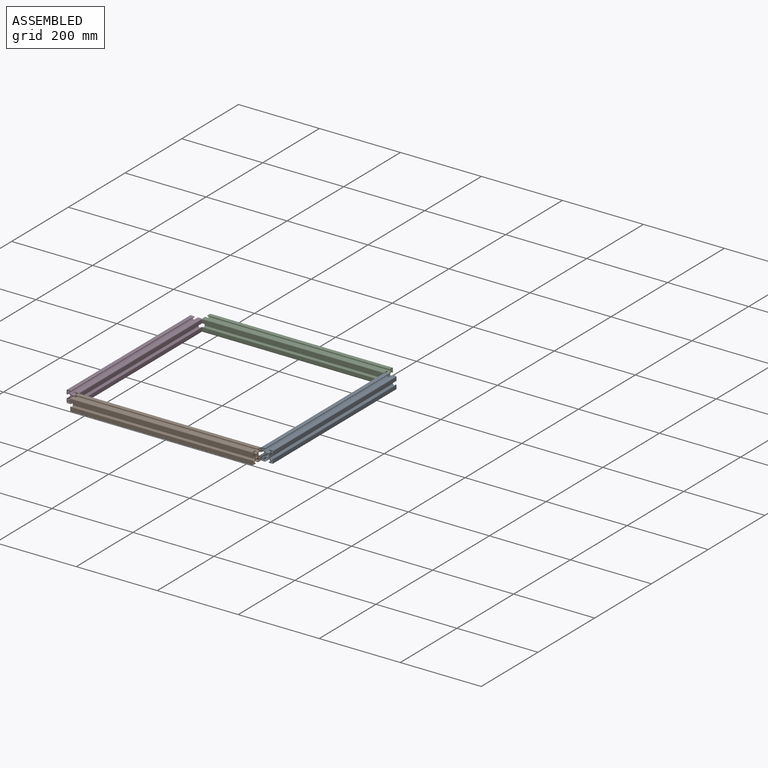
[diagram: assembled view]
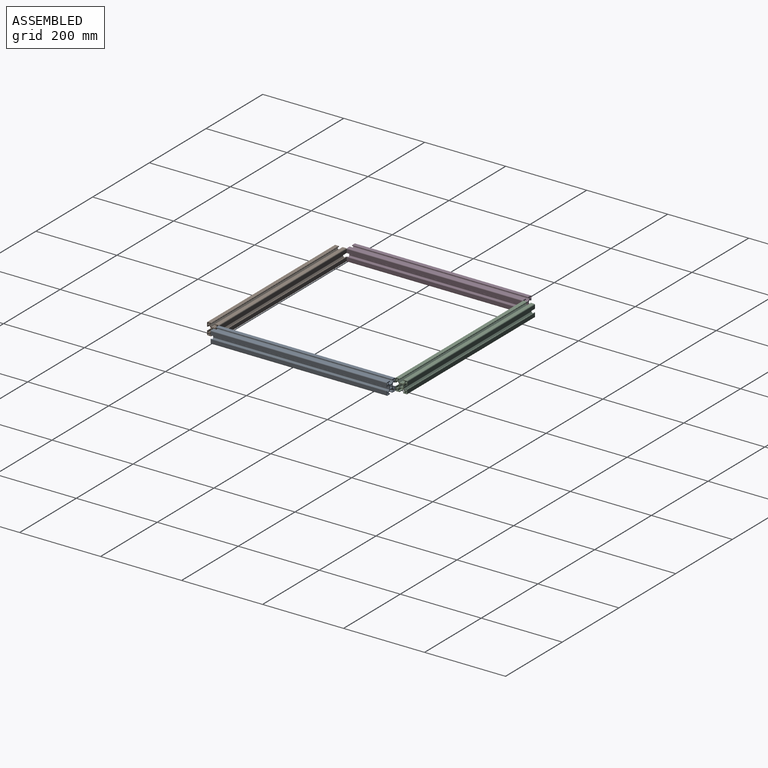
[diagram: assembled view, second angle]
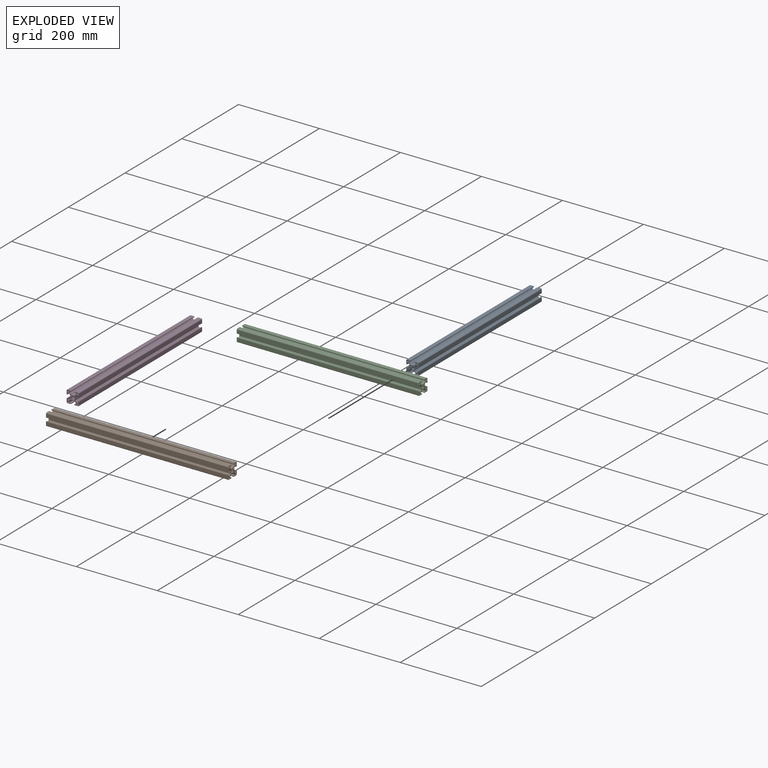
[diagram: exploded view]
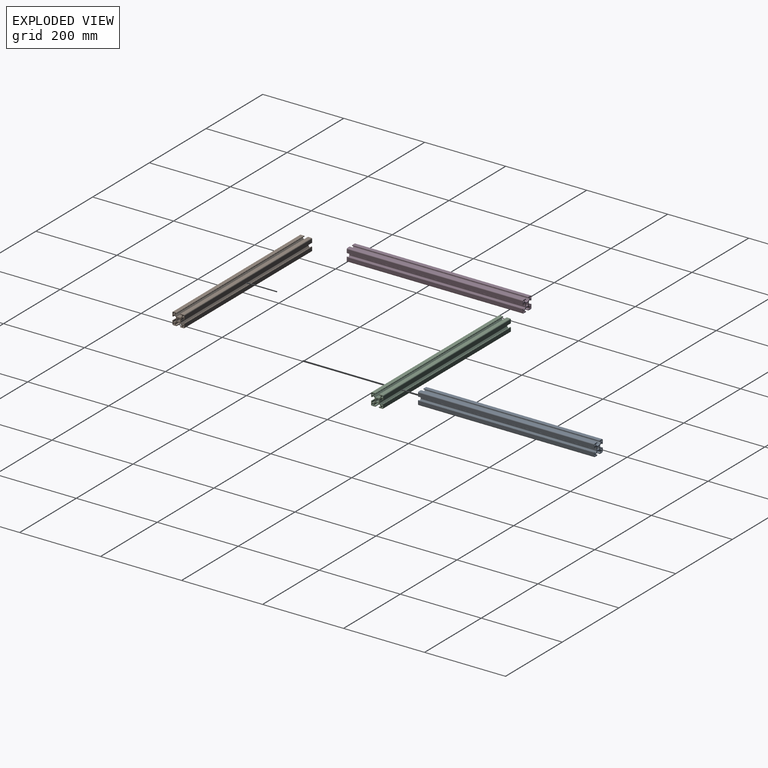
[diagram: exploded view, second angle]
ASSEMBLY  parts=4 mates=3
PART A: 186 faces, bbox 30x30x435 mm
  f0: plane 435x1.54mm, normal (0.63,0.78,0), area 858.1mm2, adj f1,f183,f184,f185
  f1: cylinder r=3.65mm len=435mm, axis (0,0,-1), area 1441.1mm2, adj f0,f2,f184,f185
  f2: plane 435x1.54mm, normal (-0.63,0.78,0), area 858.1mm2, adj f1,f3,f184,f185
  f3: cylinder r=5.5mm len=435mm, axis (0,0,-1), area 845.1mm2, adj f2,f4,f184,f185
  f4: plane 435x1.55mm, normal (0.79,-0.62,0), area 860.9mm2, adj f3,f5,f184,f185
  f5: cylinder r=3.65mm len=435mm, axis (0,0,-1), area 1441.1mm2, adj f4,f6,f184,f185
  f6: plane 435x1.55mm, normal (0.79,0.62,0), area 860.9mm2, adj f5,f7,f184,f185
  f7: cylinder r=5.5mm len=435mm, axis (0,0,-1), area 845.1mm2, adj f6,f8,f184,f185
  f8: plane 435x1.54mm, normal (-0.63,-0.78,0), area 858.1mm2, adj f7,f9,f184,f185
  f9: cylinder r=3.65mm len=435mm, axis (0,0,-1), area 1441.1mm2, adj f8,f10,f184,f185
  f10: plane 435x1.54mm, normal (0.63,-0.78,0), area 858.1mm2, adj f9,f11,f184,f185
  f11: cylinder r=5.5mm len=435mm, axis (0,0,-1), area 845.1mm2, adj f10,f12,f184,f185
  f12: plane 435x1.55mm, normal (-0.79,0.62,0), area 860.9mm2, adj f11,f13,f184,f185
  f13: cylinder r=3.65mm len=435mm, axis (0,0,-1), area 1441.1mm2, adj f12,f14,f184,f185
  f14: plane 435x1.55mm, normal (-0.79,-0.62,0), area 860.9mm2, adj f13,f183,f184,f185
  f15: plane 435x2.2mm, normal (-1,0,0), area 957mm2, adj f16,f178,f184,f185
  f16: cylinder r=1mm len=435mm, axis (0,0,-1), area 683.3mm2, adj f15,f17,f184,f185
  f17: plane 435x2.2mm, normal (0,1,0), area 957mm2, adj f16,f18,f184,f185
  f18: cylinder r=1mm len=435mm, axis (0,0,-1), area 683.3mm2, adj f17,f19,f184,f185
  f19: plane 435x2.2mm, normal (1,0,0), area 957mm2, adj f18,f20,f184,f185
  f20: cylinder r=1mm len=435mm, axis (0,0,-1), area 683.3mm2, adj f19,f21,f184,f185
  f21: plane 435x2.2mm, normal (0,-1,0), area 957mm2, adj f20,f178,f184,f185
  f22: plane 435x2.2mm, normal (-1,0,0), area 957mm2, adj f23,f179,f184,f185
  f23: cylinder r=1mm len=435mm, axis (0,0,-1), area 683.3mm2, adj f22,f24,f184,f185
  f24: plane 435x2.2mm, normal (0,1,0), area 957mm2, adj f23,f25,f184,f185
  f25: cylinder r=1mm len=435mm, axis (0,0,-1), area 683.3mm2, adj f24,f26,f184,f185
  f26: plane 435x2.2mm, normal (1,0,0), area 957mm2, adj f25,f27,f184,f185
  f27: cylinder r=1mm len=435mm, axis (0,0,-1), area 683.3mm2, adj f26,f28,f184,f185
  f28: plane 435x2.2mm, normal (0,-1,0), area 957mm2, adj f27,f179,f184,f185
  f29: plane 435x2.2mm, normal (1,0,0), area 957mm2, adj f30,f180,f184,f185
  f30: cylinder r=1mm len=435mm, axis (0,0,-1), area 683.3mm2, adj f29,f31,f184,f185
  f31: plane 435x2.2mm, normal (0,-1,0), area 957mm2, adj f30,f32,f184,f185
  f32: cylinder r=1mm len=435mm, axis (0,0,-1), area 683.3mm2, adj f31,f33,f184,f185
  f33: plane 435x2.2mm, normal (-1,0,0), area 957mm2, adj f32,f34,f184,f185
  f34: cylinder r=1mm len=435mm, axis (0,0,-1), area 683.3mm2, adj f33,f35,f184,f185
  f35: plane 435x2.2mm, normal (0,1,0), area 957mm2, adj f34,f180,f184,f185
  f36: plane 435x2.2mm, normal (1,0,0), area 957mm2, adj f37,f181,f184,f185
  f37: cylinder r=1mm len=435mm, axis (0,0,-1), area 683.3mm2, adj f36,f38,f184,f185
  f38: plane 435x2.2mm, normal (0,-1,0), area 957mm2, adj f37,f39,f184,f185
  f39: cylinder r=1mm len=435mm, axis (0,0,-1), area 683.3mm2, adj f38,f40,f184,f185
  f40: plane 435x2.2mm, normal (-1,0,0), area 957mm2, adj f39,f41,f184,f185
  f41: cylinder r=1mm len=435mm, axis (0,0,-1), area 683.3mm2, adj f40,f42,f184,f185
  f42: plane 435x2.2mm, normal (0,1,0), area 957mm2, adj f41,f181,f184,f185
  f43: cylinder r=2mm len=435mm, axis (0,0,-1), area 1366.6mm2, adj f44,f182,f184,f185
  f44: plane 435x8.3mm, normal (1,0,0), area 3610.5mm2, adj f43,f45,f184,f185
  f45: cylinder r=0.2mm len=435mm, axis (0,0,-1), area 136.7mm2, adj f44,f46,f184,f185
  f46: plane 435x0.3mm, normal (0,1,0), area 130.5mm2, adj f45,f47,f184,f185
  f47: plane 435x0.3mm, normal (1,0,0), area 130.5mm2, adj f46,f48,f184,f185
  f48: cylinder r=0.2mm len=435mm, axis (0,0,-1), area 136.7mm2, adj f47,f49,f184,f185
  f49: plane 435x1mm, normal (0,1,0), area 435mm2, adj f48,f50,f184,f185
  f50: cylinder r=0.5mm len=435mm, axis (0,0,-1), area 341.6mm2, adj f49,f51,f184,f185
  f51: plane 435x3.25mm, normal (-1,0,0), area 1413.8mm2, adj f50,f52,f184,f185
  f52: cylinder r=0.5mm len=435mm, axis (0,0,-1), area 341.6mm2, adj f51,f53,f184,f185
  f53: plane 435x2.04mm, normal (0,1,0), area 888.7mm2, adj f52,f54,f184,f185
  f54: cylinder r=0.5mm len=435mm, axis (0,0,-1), area 170.7mm2, adj f53,f55,f184,f185
  f55: plane 435x3.76mm, normal (0.71,0.71,0), area 2309.9mm2, adj f54,f56,f184,f185
  f56: cylinder r=0.5mm len=435mm, axis (0,0,-1), area 170.9mm2, adj f55,f57,f184,f185
  f57: plane 435x3.04mm, normal (1,0,0), area 1324.1mm2, adj f56,f58,f184,f185
  f58: cylinder r=0.2mm len=435mm, axis (0,0,-1), area 45.2mm2, adj f57,f59,f184,f185
  f59: plane 435x0.75mm, normal (0.87,0.5,0), area 378.2mm2, adj f58,f60,f184,f185
  f60: cylinder r=0.2mm len=435mm, axis (0,0,-1), area 90.5mm2, adj f59,f61,f184,f185
  f61: plane 435x0.75mm, normal (0.87,-0.5,0), area 378.2mm2, adj f60,f62,f184,f185
  f62: cylinder r=0.2mm len=435mm, axis (0,0,-1), area 45.2mm2, adj f61,f63,f184,f185
  f63: plane 435x3.04mm, normal (1,0,0), area 1324.1mm2, adj f62,f64,f184,f185
  f64: cylinder r=0.5mm len=435mm, axis (0,0,-1), area 170.9mm2, adj f63,f65,f184,f185
  f65: plane 435x3.76mm, normal (0.71,-0.71,0), area 2309.9mm2, adj f64,f66,f184,f185
  f66: cylinder r=0.5mm len=435mm, axis (0,0,-1), area 170.7mm2, adj f65,f67,f184,f185
  f67: plane 435x2.04mm, normal (0,-1,0), area 888.7mm2, adj f66,f68,f184,f185
  f68: cylinder r=0.5mm len=435mm, axis (0,0,-1), area 341.6mm2, adj f67,f69,f184,f185
  f69: plane 435x3.25mm, normal (-1,0,0), area 1413.8mm2, adj f68,f70,f184,f185
  f70: cylinder r=0.5mm len=435mm, axis (0,0,-1), area 341.6mm2, adj f69,f71,f184,f185
  f71: plane 435x1mm, normal (0,-1,0), area 435mm2, adj f70,f72,f184,f185
  f72: cylinder r=0.2mm len=435mm, axis (0,0,-1), area 136.7mm2, adj f71,f73,f184,f185
  f73: plane 435x0.3mm, normal (1,0,0), area 130.5mm2, adj f72,f74,f184,f185
  f74: plane 435x0.3mm, normal (0,-1,0), area 130.5mm2, adj f73,f75,f184,f185
  f75: cylinder r=0.2mm len=435mm, axis (0,0,-1), area 136.7mm2, adj f74,f76,f184,f185
  f76: plane 435x8.3mm, normal (1,0,0), area 3610.5mm2, adj f75,f77,f184,f185
  f77: cylinder r=2mm len=435mm, axis (0,0,-1), area 1366.6mm2, adj f76,f78,f184,f185
  f78: plane 435x8.3mm, normal (0,1,0), area 3610.5mm2, adj f77,f79,f184,f185
  f79: cylinder r=0.2mm len=435mm, axis (0,0,-1), area 136.7mm2, adj f78,f80,f184,f185
  f80: plane 435x0.3mm, normal (-1,0,0), area 130.5mm2, adj f79,f81,f184,f185
  f81: plane 435x0.3mm, normal (0,1,0), area 130.5mm2, adj f80,f82,f184,f185
  f82: cylinder r=0.2mm len=435mm, axis (0,0,-1), area 136.7mm2, adj f81,f83,f184,f185
  f83: plane 435x1mm, normal (-1,0,0), area 435mm2, adj f82,f84,f184,f185
  f84: cylinder r=0.5mm len=435mm, axis (0,0,-1), area 341.6mm2, adj f83,f85,f184,f185
  f85: plane 435x3.25mm, normal (0,-1,0), area 1413.8mm2, adj f84,f86,f184,f185
  f86: cylinder r=0.5mm len=435mm, axis (0,0,-1), area 341.6mm2, adj f85,f87,f184,f185
  f87: plane 435x2.04mm, normal (-1,0,0), area 888.7mm2, adj f86,f88,f184,f185
  f88: cylinder r=0.5mm len=435mm, axis (0,0,-1), area 170.7mm2, adj f87,f89,f184,f185
  f89: plane 435x3.76mm, normal (-0.71,0.71,0), area 2309.9mm2, adj f88,f90,f184,f185
  f90: cylinder r=0.5mm len=435mm, axis (0,0,-1), area 170.9mm2, adj f89,f91,f184,f185
  f91: plane 435x3.04mm, normal (0,1,0), area 1324.1mm2, adj f90,f92,f184,f185
  f92: cylinder r=0.2mm len=435mm, axis (0,0,-1), area 45.2mm2, adj f91,f93,f184,f185
  f93: plane 435x0.75mm, normal (-0.5,0.87,0), area 378.2mm2, adj f92,f94,f184,f185
  f94: cylinder r=0.2mm len=435mm, axis (0,0,-1), area 90.5mm2, adj f93,f95,f184,f185
  f95: plane 435x0.75mm, normal (0.5,0.87,0), area 378.2mm2, adj f94,f96,f184,f185
  f96: cylinder r=0.2mm len=435mm, axis (0,0,-1), area 45.2mm2, adj f95,f97,f184,f185
  f97: plane 435x3.04mm, normal (0,1,0), area 1324.1mm2, adj f96,f98,f184,f185
  f98: cylinder r=0.5mm len=435mm, axis (0,0,-1), area 170.9mm2, adj f97,f99,f184,f185
  f99: plane 435x3.76mm, normal (0.71,0.71,0), area 2309.9mm2, adj f98,f100,f184,f185
  f100: cylinder r=0.5mm len=435mm, axis (0,0,-1), area 170.7mm2, adj f99,f101,f184,f185
  f101: plane 435x2.04mm, normal (1,0,0), area 888.7mm2, adj f100,f102,f184,f185
  f102: cylinder r=0.5mm len=435mm, axis (0,0,-1), area 341.6mm2, adj f101,f103,f184,f185
  f103: plane 435x3.25mm, normal (0,-1,0), area 1413.8mm2, adj f102,f104,f184,f185
  f104: cylinder r=0.5mm len=435mm, axis (0,0,-1), area 341.6mm2, adj f103,f105,f184,f185
  f105: plane 435x1mm, normal (1,0,0), area 435mm2, adj f104,f106,f184,f185
  f106: cylinder r=0.2mm len=435mm, axis (0,0,-1), area 136.7mm2, adj f105,f107,f184,f185
  f107: plane 435x0.3mm, normal (0,1,0), area 130.5mm2, adj f106,f108,f184,f185
  f108: plane 435x0.3mm, normal (1,0,0), area 130.5mm2, adj f107,f109,f184,f185
  f109: cylinder r=0.2mm len=435mm, axis (0,0,-1), area 136.7mm2, adj f108,f110,f184,f185
  f110: plane 435x8.3mm, normal (0,1,0), area 3610.5mm2, adj f109,f111,f184,f185
  f111: cylinder r=2mm len=435mm, axis (0,0,-1), area 1366.6mm2, adj f110,f112,f184,f185
  f112: plane 435x8.3mm, normal (-1,0,0), area 3610.5mm2, adj f111,f113,f184,f185
  f113: cylinder r=0.2mm len=435mm, axis (0,0,-1), area 136.7mm2, adj f112,f114,f184,f185
  f114: plane 435x0.3mm, normal (0,-1,0), area 130.5mm2, adj f113,f115,f184,f185
  f115: plane 435x0.3mm, normal (-1,0,0), area 130.5mm2, adj f114,f116,f184,f185
  f116: cylinder r=0.2mm len=435mm, axis (0,0,-1), area 136.7mm2, adj f115,f117,f184,f185
  f117: plane 435x1mm, normal (0,-1,0), area 435mm2, adj f116,f118,f184,f185
  f118: cylinder r=0.5mm len=435mm, axis (0,0,-1), area 341.6mm2, adj f117,f119,f184,f185
  f119: plane 435x3.25mm, normal (1,0,0), area 1413.8mm2, adj f118,f120,f184,f185
  f120: cylinder r=0.5mm len=435mm, axis (0,0,-1), area 341.6mm2, adj f119,f121,f184,f185
  f121: plane 435x2.04mm, normal (0,-1,0), area 888.7mm2, adj f120,f122,f184,f185
  f122: cylinder r=0.5mm len=435mm, axis (0,0,-1), area 170.7mm2, adj f121,f123,f184,f185
  f123: plane 435x3.76mm, normal (-0.71,-0.71,0), area 2309.9mm2, adj f122,f124,f184,f185
  f124: cylinder r=0.5mm len=435mm, axis (0,0,-1), area 170.9mm2, adj f123,f125,f184,f185
  f125: plane 435x3.04mm, normal (-1,0,0), area 1324.1mm2, adj f124,f126,f184,f185
  f126: cylinder r=0.2mm len=435mm, axis (0,0,-1), area 45.2mm2, adj f125,f127,f184,f185
  f127: plane 435x0.75mm, normal (-0.87,-0.5,0), area 378.2mm2, adj f126,f128,f184,f185
  f128: cylinder r=0.2mm len=435mm, axis (0,0,-1), area 90.5mm2, adj f127,f129,f184,f185
  f129: plane 435x0.75mm, normal (-0.87,0.5,0), area 378.2mm2, adj f128,f130,f184,f185
  f130: cylinder r=0.2mm len=435mm, axis (0,0,-1), area 45.2mm2, adj f129,f131,f184,f185
  f131: plane 435x3.04mm, normal (-1,0,0), area 1324.1mm2, adj f130,f132,f184,f185
  f132: cylinder r=0.5mm len=435mm, axis (0,0,-1), area 170.9mm2, adj f131,f133,f184,f185
  f133: plane 435x3.76mm, normal (-0.71,0.71,0), area 2309.9mm2, adj f132,f134,f184,f185
  f134: cylinder r=0.5mm len=435mm, axis (0,0,-1), area 170.7mm2, adj f133,f135,f184,f185
  f135: plane 435x2.04mm, normal (0,1,0), area 888.7mm2, adj f134,f136,f184,f185
  f136: cylinder r=0.5mm len=435mm, axis (0,0,-1), area 341.6mm2, adj f135,f137,f184,f185
  f137: plane 435x3.25mm, normal (1,0,0), area 1413.8mm2, adj f136,f138,f184,f185
  f138: cylinder r=0.5mm len=435mm, axis (0,0,-1), area 341.6mm2, adj f137,f139,f184,f185
  f139: plane 435x1mm, normal (0,1,0), area 435mm2, adj f138,f140,f184,f185
  f140: cylinder r=0.2mm len=435mm, axis (0,0,-1), area 136.7mm2, adj f139,f141,f184,f185
  f141: plane 435x0.3mm, normal (-1,0,0), area 130.5mm2, adj f140,f142,f184,f185
  f142: plane 435x0.3mm, normal (0,1,0), area 130.5mm2, adj f141,f143,f184,f185
  f143: cylinder r=0.2mm len=435mm, axis (0,0,-1), area 136.7mm2, adj f142,f144,f184,f185
  f144: plane 435x8.3mm, normal (-1,0,0), area 3610.5mm2, adj f143,f145,f184,f185
  f145: cylinder r=2mm len=435mm, axis (0,0,-1), area 1366.6mm2, adj f144,f146,f184,f185
  f146: plane 435x8.3mm, normal (0,-1,0), area 3610.5mm2, adj f145,f147,f184,f185
  f147: cylinder r=0.2mm len=435mm, axis (0,0,-1), area 136.7mm2, adj f146,f148,f184,f185
  f148: plane 435x0.3mm, normal (1,0,0), area 130.5mm2, adj f147,f149,f184,f185
  f149: plane 435x0.3mm, normal (0,-1,0), area 130.5mm2, adj f148,f150,f184,f185
  f150: cylinder r=0.2mm len=435mm, axis (0,0,-1), area 136.7mm2, adj f149,f151,f184,f185
  f151: plane 435x1mm, normal (1,0,0), area 435mm2, adj f150,f152,f184,f185
  f152: cylinder r=0.5mm len=435mm, axis (0,0,-1), area 341.6mm2, adj f151,f153,f184,f185
  f153: plane 435x3.25mm, normal (0,1,0), area 1413.8mm2, adj f152,f154,f184,f185
  f154: cylinder r=0.5mm len=435mm, axis (0,0,-1), area 341.6mm2, adj f153,f155,f184,f185
  f155: plane 435x2.04mm, normal (1,0,0), area 888.7mm2, adj f154,f156,f184,f185
  f156: cylinder r=0.5mm len=435mm, axis (0,0,-1), area 170.7mm2, adj f155,f157,f184,f185
  f157: plane 435x3.76mm, normal (0.71,-0.71,0), area 2309.9mm2, adj f156,f158,f184,f185
  f158: cylinder r=0.5mm len=435mm, axis (0,0,-1), area 170.9mm2, adj f157,f159,f184,f185
  f159: plane 435x3.04mm, normal (0,-1,0), area 1324.1mm2, adj f158,f160,f184,f185
  f160: cylinder r=0.2mm len=435mm, axis (0,0,-1), area 45.2mm2, adj f159,f161,f184,f185
  f161: plane 435x0.75mm, normal (0.5,-0.87,0), area 378.2mm2, adj f160,f162,f184,f185
  f162: cylinder r=0.2mm len=435mm, axis (0,0,-1), area 90.5mm2, adj f161,f163,f184,f185
  f163: plane 435x0.75mm, normal (-0.5,-0.87,0), area 378.2mm2, adj f162,f164,f184,f185
  f164: cylinder r=0.2mm len=435mm, axis (0,0,-1), area 45.2mm2, adj f163,f165,f184,f185
  f165: plane 435x3.04mm, normal (0,-1,0), area 1324.1mm2, adj f164,f166,f184,f185
  f166: cylinder r=0.5mm len=435mm, axis (0,0,-1), area 170.9mm2, adj f165,f167,f184,f185
  f167: plane 435x3.76mm, normal (-0.71,-0.71,0), area 2309.9mm2, adj f166,f168,f184,f185
  f168: cylinder r=0.5mm len=435mm, axis (0,0,-1), area 170.7mm2, adj f167,f169,f184,f185
  f169: plane 435x2.04mm, normal (-1,0,0), area 888.7mm2, adj f168,f170,f184,f185
  f170: cylinder r=0.5mm len=435mm, axis (0,0,-1), area 341.6mm2, adj f169,f171,f184,f185
  f171: plane 435x3.25mm, normal (0,1,0), area 1413.8mm2, adj f170,f172,f184,f185
  f172: cylinder r=0.5mm len=435mm, axis (0,0,-1), area 341.6mm2, adj f171,f173,f184,f185
  f173: plane 435x1mm, normal (-1,0,0), area 435mm2, adj f172,f174,f184,f185
  f174: cylinder r=0.2mm len=435mm, axis (0,0,-1), area 136.7mm2, adj f173,f175,f184,f185
  f175: plane 435x0.3mm, normal (0,-1,0), area 130.5mm2, adj f174,f176,f184,f185
  f176: plane 435x0.3mm, normal (-1,0,0), area 130.5mm2, adj f175,f177,f184,f185
  f177: cylinder r=0.2mm len=435mm, axis (0,0,-1), area 136.7mm2, adj f176,f182,f184,f185
  f178: cylinder r=1mm len=435mm, axis (0,0,-1), area 683.3mm2, adj f15,f21,f184,f185
  f179: cylinder r=1mm len=435mm, axis (0,0,-1), area 683.3mm2, adj f22,f28,f184,f185
  f180: cylinder r=1mm len=435mm, axis (0,0,-1), area 683.3mm2, adj f29,f35,f184,f185
  f181: cylinder r=1mm len=435mm, axis (0,0,-1), area 683.3mm2, adj f36,f42,f184,f185
  f182: plane 435x8.3mm, normal (0,-1,0), area 3610.5mm2, adj f43,f177,f184,f185
  f183: cylinder r=5.5mm len=435mm, axis (0,0,-1), area 845.1mm2, adj f0,f14,f184,f185
  f184: plane 30x30mm, normal (0,0,1), area 313.9mm2, adj f0,f1,f2,f3,f4,f5,f6,f7
  f185: plane 30x30mm, normal (0,0,-1), area 313.9mm2, adj f0,f1,f2,f3,f4,f5,f6,f7
PART B: 186 faces, bbox 30x30x450 mm
  f0: plane 450x1.54mm, normal (0.63,0.78,0), area 887.6mm2, adj f1,f183,f184,f185
  f1: cylinder r=3.65mm len=450mm, axis (0,0,-1), area 1490.8mm2, adj f0,f2,f184,f185
  f2: plane 450x1.54mm, normal (-0.63,0.78,0), area 887.6mm2, adj f1,f3,f184,f185
  f3: cylinder r=5.5mm len=450mm, axis (0,0,-1), area 874.2mm2, adj f2,f4,f184,f185
  f4: plane 450x1.55mm, normal (0.79,-0.62,0), area 890.6mm2, adj f3,f5,f184,f185
  f5: cylinder r=3.65mm len=450mm, axis (0,0,-1), area 1490.8mm2, adj f4,f6,f184,f185
  f6: plane 450x1.55mm, normal (0.79,0.62,0), area 890.6mm2, adj f5,f7,f184,f185
  f7: cylinder r=5.5mm len=450mm, axis (0,0,-1), area 874.2mm2, adj f6,f8,f184,f185
  f8: plane 450x1.54mm, normal (-0.63,-0.78,0), area 887.6mm2, adj f7,f9,f184,f185
  f9: cylinder r=3.65mm len=450mm, axis (0,0,-1), area 1490.8mm2, adj f8,f10,f184,f185
  f10: plane 450x1.54mm, normal (0.63,-0.78,0), area 887.6mm2, adj f9,f11,f184,f185
  f11: cylinder r=5.5mm len=450mm, axis (0,0,-1), area 874.2mm2, adj f10,f12,f184,f185
  f12: plane 450x1.55mm, normal (-0.79,0.62,0), area 890.6mm2, adj f11,f13,f184,f185
  f13: cylinder r=3.65mm len=450mm, axis (0,0,-1), area 1490.8mm2, adj f12,f14,f184,f185
  f14: plane 450x1.55mm, normal (-0.79,-0.62,0), area 890.6mm2, adj f13,f183,f184,f185
  f15: plane 450x2.2mm, normal (-1,0,0), area 990mm2, adj f16,f178,f184,f185
  f16: cylinder r=1mm len=450mm, axis (0,0,-1), area 706.9mm2, adj f15,f17,f184,f185
  f17: plane 450x2.2mm, normal (0,1,0), area 990mm2, adj f16,f18,f184,f185
  f18: cylinder r=1mm len=450mm, axis (0,0,-1), area 706.9mm2, adj f17,f19,f184,f185
  f19: plane 450x2.2mm, normal (1,0,0), area 990mm2, adj f18,f20,f184,f185
  f20: cylinder r=1mm len=450mm, axis (0,0,-1), area 706.9mm2, adj f19,f21,f184,f185
  f21: plane 450x2.2mm, normal (0,-1,0), area 990mm2, adj f20,f178,f184,f185
  f22: plane 450x2.2mm, normal (-1,0,0), area 990mm2, adj f23,f179,f184,f185
  f23: cylinder r=1mm len=450mm, axis (0,0,-1), area 706.9mm2, adj f22,f24,f184,f185
  f24: plane 450x2.2mm, normal (0,1,0), area 990mm2, adj f23,f25,f184,f185
  f25: cylinder r=1mm len=450mm, axis (0,0,-1), area 706.9mm2, adj f24,f26,f184,f185
  f26: plane 450x2.2mm, normal (1,0,0), area 990mm2, adj f25,f27,f184,f185
  f27: cylinder r=1mm len=450mm, axis (0,0,-1), area 706.9mm2, adj f26,f28,f184,f185
  f28: plane 450x2.2mm, normal (0,-1,0), area 990mm2, adj f27,f179,f184,f185
  f29: plane 450x2.2mm, normal (1,0,0), area 990mm2, adj f30,f180,f184,f185
  f30: cylinder r=1mm len=450mm, axis (0,0,-1), area 706.9mm2, adj f29,f31,f184,f185
  f31: plane 450x2.2mm, normal (0,-1,0), area 990mm2, adj f30,f32,f184,f185
  f32: cylinder r=1mm len=450mm, axis (0,0,-1), area 706.9mm2, adj f31,f33,f184,f185
  f33: plane 450x2.2mm, normal (-1,0,0), area 990mm2, adj f32,f34,f184,f185
  f34: cylinder r=1mm len=450mm, axis (0,0,-1), area 706.9mm2, adj f33,f35,f184,f185
  f35: plane 450x2.2mm, normal (0,1,0), area 990mm2, adj f34,f180,f184,f185
  f36: plane 450x2.2mm, normal (1,0,0), area 990mm2, adj f37,f181,f184,f185
  f37: cylinder r=1mm len=450mm, axis (0,0,-1), area 706.9mm2, adj f36,f38,f184,f185
  f38: plane 450x2.2mm, normal (0,-1,0), area 990mm2, adj f37,f39,f184,f185
  f39: cylinder r=1mm len=450mm, axis (0,0,-1), area 706.9mm2, adj f38,f40,f184,f185
  f40: plane 450x2.2mm, normal (-1,0,0), area 990mm2, adj f39,f41,f184,f185
  f41: cylinder r=1mm len=450mm, axis (0,0,-1), area 706.9mm2, adj f40,f42,f184,f185
  f42: plane 450x2.2mm, normal (0,1,0), area 990mm2, adj f41,f181,f184,f185
  f43: cylinder r=2mm len=450mm, axis (0,0,-1), area 1413.7mm2, adj f44,f182,f184,f185
  f44: plane 450x8.3mm, normal (1,0,0), area 3735mm2, adj f43,f45,f184,f185
  f45: cylinder r=0.2mm len=450mm, axis (0,0,-1), area 141.4mm2, adj f44,f46,f184,f185
  f46: plane 450x0.3mm, normal (0,1,0), area 135mm2, adj f45,f47,f184,f185
  f47: plane 450x0.3mm, normal (1,0,0), area 135mm2, adj f46,f48,f184,f185
  f48: cylinder r=0.2mm len=450mm, axis (0,0,-1), area 141.4mm2, adj f47,f49,f184,f185
  f49: plane 450x1mm, normal (0,1,0), area 450mm2, adj f48,f50,f184,f185
  f50: cylinder r=0.5mm len=450mm, axis (0,0,-1), area 353.4mm2, adj f49,f51,f184,f185
  f51: plane 450x3.25mm, normal (-1,0,0), area 1462.5mm2, adj f50,f52,f184,f185
  f52: cylinder r=0.5mm len=450mm, axis (0,0,-1), area 353.4mm2, adj f51,f53,f184,f185
  f53: plane 450x2.04mm, normal (0,1,0), area 919.4mm2, adj f52,f54,f184,f185
  f54: cylinder r=0.5mm len=450mm, axis (0,0,-1), area 176.6mm2, adj f53,f55,f184,f185
  f55: plane 450x3.76mm, normal (0.71,0.71,0), area 2389.6mm2, adj f54,f56,f184,f185
  f56: cylinder r=0.5mm len=450mm, axis (0,0,-1), area 176.8mm2, adj f55,f57,f184,f185
  f57: plane 450x3.04mm, normal (1,0,0), area 1369.8mm2, adj f56,f58,f184,f185
  f58: cylinder r=0.2mm len=450mm, axis (0,0,-1), area 46.8mm2, adj f57,f59,f184,f185
  f59: plane 450x0.75mm, normal (0.87,0.5,0), area 391.2mm2, adj f58,f60,f184,f185
  f60: cylinder r=0.2mm len=450mm, axis (0,0,-1), area 93.6mm2, adj f59,f61,f184,f185
  f61: plane 450x0.75mm, normal (0.87,-0.5,0), area 391.2mm2, adj f60,f62,f184,f185
  f62: cylinder r=0.2mm len=450mm, axis (0,0,-1), area 46.8mm2, adj f61,f63,f184,f185
  f63: plane 450x3.04mm, normal (1,0,0), area 1369.8mm2, adj f62,f64,f184,f185
  f64: cylinder r=0.5mm len=450mm, axis (0,0,-1), area 176.8mm2, adj f63,f65,f184,f185
  f65: plane 450x3.76mm, normal (0.71,-0.71,0), area 2389.6mm2, adj f64,f66,f184,f185
  f66: cylinder r=0.5mm len=450mm, axis (0,0,-1), area 176.6mm2, adj f65,f67,f184,f185
  f67: plane 450x2.04mm, normal (0,-1,0), area 919.4mm2, adj f66,f68,f184,f185
  f68: cylinder r=0.5mm len=450mm, axis (0,0,-1), area 353.4mm2, adj f67,f69,f184,f185
  f69: plane 450x3.25mm, normal (-1,0,0), area 1462.5mm2, adj f68,f70,f184,f185
  f70: cylinder r=0.5mm len=450mm, axis (0,0,-1), area 353.4mm2, adj f69,f71,f184,f185
  f71: plane 450x1mm, normal (0,-1,0), area 450mm2, adj f70,f72,f184,f185
  f72: cylinder r=0.2mm len=450mm, axis (0,0,-1), area 141.4mm2, adj f71,f73,f184,f185
  f73: plane 450x0.3mm, normal (1,0,0), area 135mm2, adj f72,f74,f184,f185
  f74: plane 450x0.3mm, normal (0,-1,0), area 135mm2, adj f73,f75,f184,f185
  f75: cylinder r=0.2mm len=450mm, axis (0,0,-1), area 141.4mm2, adj f74,f76,f184,f185
  f76: plane 450x8.3mm, normal (1,0,0), area 3735mm2, adj f75,f77,f184,f185
  f77: cylinder r=2mm len=450mm, axis (0,0,-1), area 1413.7mm2, adj f76,f78,f184,f185
  f78: plane 450x8.3mm, normal (0,1,0), area 3735mm2, adj f77,f79,f184,f185
  f79: cylinder r=0.2mm len=450mm, axis (0,0,-1), area 141.4mm2, adj f78,f80,f184,f185
  f80: plane 450x0.3mm, normal (-1,0,0), area 135mm2, adj f79,f81,f184,f185
  f81: plane 450x0.3mm, normal (0,1,0), area 135mm2, adj f80,f82,f184,f185
  f82: cylinder r=0.2mm len=450mm, axis (0,0,-1), area 141.4mm2, adj f81,f83,f184,f185
  f83: plane 450x1mm, normal (-1,0,0), area 450mm2, adj f82,f84,f184,f185
  f84: cylinder r=0.5mm len=450mm, axis (0,0,-1), area 353.4mm2, adj f83,f85,f184,f185
  f85: plane 450x3.25mm, normal (0,-1,0), area 1462.5mm2, adj f84,f86,f184,f185
  f86: cylinder r=0.5mm len=450mm, axis (0,0,-1), area 353.4mm2, adj f85,f87,f184,f185
  f87: plane 450x2.04mm, normal (-1,0,0), area 919.4mm2, adj f86,f88,f184,f185
  f88: cylinder r=0.5mm len=450mm, axis (0,0,-1), area 176.6mm2, adj f87,f89,f184,f185
  f89: plane 450x3.76mm, normal (-0.71,0.71,0), area 2389.6mm2, adj f88,f90,f184,f185
  f90: cylinder r=0.5mm len=450mm, axis (0,0,-1), area 176.8mm2, adj f89,f91,f184,f185
  f91: plane 450x3.04mm, normal (0,1,0), area 1369.8mm2, adj f90,f92,f184,f185
  f92: cylinder r=0.2mm len=450mm, axis (0,0,-1), area 46.8mm2, adj f91,f93,f184,f185
  f93: plane 450x0.75mm, normal (-0.5,0.87,0), area 391.2mm2, adj f92,f94,f184,f185
  f94: cylinder r=0.2mm len=450mm, axis (0,0,-1), area 93.6mm2, adj f93,f95,f184,f185
  f95: plane 450x0.75mm, normal (0.5,0.87,0), area 391.2mm2, adj f94,f96,f184,f185
  f96: cylinder r=0.2mm len=450mm, axis (0,0,-1), area 46.8mm2, adj f95,f97,f184,f185
  f97: plane 450x3.04mm, normal (0,1,0), area 1369.8mm2, adj f96,f98,f184,f185
  f98: cylinder r=0.5mm len=450mm, axis (0,0,-1), area 176.8mm2, adj f97,f99,f184,f185
  f99: plane 450x3.76mm, normal (0.71,0.71,0), area 2389.6mm2, adj f98,f100,f184,f185
  f100: cylinder r=0.5mm len=450mm, axis (0,0,-1), area 176.6mm2, adj f99,f101,f184,f185
  f101: plane 450x2.04mm, normal (1,0,0), area 919.4mm2, adj f100,f102,f184,f185
  f102: cylinder r=0.5mm len=450mm, axis (0,0,-1), area 353.4mm2, adj f101,f103,f184,f185
  f103: plane 450x3.25mm, normal (0,-1,0), area 1462.5mm2, adj f102,f104,f184,f185
  f104: cylinder r=0.5mm len=450mm, axis (0,0,-1), area 353.4mm2, adj f103,f105,f184,f185
  f105: plane 450x1mm, normal (1,0,0), area 450mm2, adj f104,f106,f184,f185
  f106: cylinder r=0.2mm len=450mm, axis (0,0,-1), area 141.4mm2, adj f105,f107,f184,f185
  f107: plane 450x0.3mm, normal (0,1,0), area 135mm2, adj f106,f108,f184,f185
  f108: plane 450x0.3mm, normal (1,0,0), area 135mm2, adj f107,f109,f184,f185
  f109: cylinder r=0.2mm len=450mm, axis (0,0,-1), area 141.4mm2, adj f108,f110,f184,f185
  f110: plane 450x8.3mm, normal (0,1,0), area 3735mm2, adj f109,f111,f184,f185
  f111: cylinder r=2mm len=450mm, axis (0,0,-1), area 1413.7mm2, adj f110,f112,f184,f185
  f112: plane 450x8.3mm, normal (-1,0,0), area 3735mm2, adj f111,f113,f184,f185
  f113: cylinder r=0.2mm len=450mm, axis (0,0,-1), area 141.4mm2, adj f112,f114,f184,f185
  f114: plane 450x0.3mm, normal (0,-1,0), area 135mm2, adj f113,f115,f184,f185
  f115: plane 450x0.3mm, normal (-1,0,0), area 135mm2, adj f114,f116,f184,f185
  f116: cylinder r=0.2mm len=450mm, axis (0,0,-1), area 141.4mm2, adj f115,f117,f184,f185
  f117: plane 450x1mm, normal (0,-1,0), area 450mm2, adj f116,f118,f184,f185
  f118: cylinder r=0.5mm len=450mm, axis (0,0,-1), area 353.4mm2, adj f117,f119,f184,f185
  f119: plane 450x3.25mm, normal (1,0,0), area 1462.5mm2, adj f118,f120,f184,f185
  f120: cylinder r=0.5mm len=450mm, axis (0,0,-1), area 353.4mm2, adj f119,f121,f184,f185
  f121: plane 450x2.04mm, normal (0,-1,0), area 919.4mm2, adj f120,f122,f184,f185
  f122: cylinder r=0.5mm len=450mm, axis (0,0,-1), area 176.6mm2, adj f121,f123,f184,f185
  f123: plane 450x3.76mm, normal (-0.71,-0.71,0), area 2389.6mm2, adj f122,f124,f184,f185
  f124: cylinder r=0.5mm len=450mm, axis (0,0,-1), area 176.8mm2, adj f123,f125,f184,f185
  f125: plane 450x3.04mm, normal (-1,0,0), area 1369.8mm2, adj f124,f126,f184,f185
  f126: cylinder r=0.2mm len=450mm, axis (0,0,-1), area 46.8mm2, adj f125,f127,f184,f185
  f127: plane 450x0.75mm, normal (-0.87,-0.5,0), area 391.2mm2, adj f126,f128,f184,f185
  f128: cylinder r=0.2mm len=450mm, axis (0,0,-1), area 93.6mm2, adj f127,f129,f184,f185
  f129: plane 450x0.75mm, normal (-0.87,0.5,0), area 391.2mm2, adj f128,f130,f184,f185
  f130: cylinder r=0.2mm len=450mm, axis (0,0,-1), area 46.8mm2, adj f129,f131,f184,f185
  f131: plane 450x3.04mm, normal (-1,0,0), area 1369.8mm2, adj f130,f132,f184,f185
  f132: cylinder r=0.5mm len=450mm, axis (0,0,-1), area 176.8mm2, adj f131,f133,f184,f185
  f133: plane 450x3.76mm, normal (-0.71,0.71,0), area 2389.6mm2, adj f132,f134,f184,f185
  f134: cylinder r=0.5mm len=450mm, axis (0,0,-1), area 176.6mm2, adj f133,f135,f184,f185
  f135: plane 450x2.04mm, normal (0,1,0), area 919.4mm2, adj f134,f136,f184,f185
  f136: cylinder r=0.5mm len=450mm, axis (0,0,-1), area 353.4mm2, adj f135,f137,f184,f185
  f137: plane 450x3.25mm, normal (1,0,0), area 1462.5mm2, adj f136,f138,f184,f185
  f138: cylinder r=0.5mm len=450mm, axis (0,0,-1), area 353.4mm2, adj f137,f139,f184,f185
  f139: plane 450x1mm, normal (0,1,0), area 450mm2, adj f138,f140,f184,f185
  f140: cylinder r=0.2mm len=450mm, axis (0,0,-1), area 141.4mm2, adj f139,f141,f184,f185
  f141: plane 450x0.3mm, normal (-1,0,0), area 135mm2, adj f140,f142,f184,f185
  f142: plane 450x0.3mm, normal (0,1,0), area 135mm2, adj f141,f143,f184,f185
  f143: cylinder r=0.2mm len=450mm, axis (0,0,-1), area 141.4mm2, adj f142,f144,f184,f185
  f144: plane 450x8.3mm, normal (-1,0,0), area 3735mm2, adj f143,f145,f184,f185
  f145: cylinder r=2mm len=450mm, axis (0,0,-1), area 1413.7mm2, adj f144,f146,f184,f185
  f146: plane 450x8.3mm, normal (0,-1,0), area 3735mm2, adj f145,f147,f184,f185
  f147: cylinder r=0.2mm len=450mm, axis (0,0,-1), area 141.4mm2, adj f146,f148,f184,f185
  f148: plane 450x0.3mm, normal (1,0,0), area 135mm2, adj f147,f149,f184,f185
  f149: plane 450x0.3mm, normal (0,-1,0), area 135mm2, adj f148,f150,f184,f185
  f150: cylinder r=0.2mm len=450mm, axis (0,0,-1), area 141.4mm2, adj f149,f151,f184,f185
  f151: plane 450x1mm, normal (1,0,0), area 450mm2, adj f150,f152,f184,f185
  f152: cylinder r=0.5mm len=450mm, axis (0,0,-1), area 353.4mm2, adj f151,f153,f184,f185
  f153: plane 450x3.25mm, normal (0,1,0), area 1462.5mm2, adj f152,f154,f184,f185
  f154: cylinder r=0.5mm len=450mm, axis (0,0,-1), area 353.4mm2, adj f153,f155,f184,f185
  f155: plane 450x2.04mm, normal (1,0,0), area 919.4mm2, adj f154,f156,f184,f185
  f156: cylinder r=0.5mm len=450mm, axis (0,0,-1), area 176.6mm2, adj f155,f157,f184,f185
  f157: plane 450x3.76mm, normal (0.71,-0.71,0), area 2389.6mm2, adj f156,f158,f184,f185
  f158: cylinder r=0.5mm len=450mm, axis (0,0,-1), area 176.8mm2, adj f157,f159,f184,f185
  f159: plane 450x3.04mm, normal (0,-1,0), area 1369.8mm2, adj f158,f160,f184,f185
  f160: cylinder r=0.2mm len=450mm, axis (0,0,-1), area 46.8mm2, adj f159,f161,f184,f185
  f161: plane 450x0.75mm, normal (0.5,-0.87,0), area 391.2mm2, adj f160,f162,f184,f185
  f162: cylinder r=0.2mm len=450mm, axis (0,0,-1), area 93.6mm2, adj f161,f163,f184,f185
  f163: plane 450x0.75mm, normal (-0.5,-0.87,0), area 391.2mm2, adj f162,f164,f184,f185
  f164: cylinder r=0.2mm len=450mm, axis (0,0,-1), area 46.8mm2, adj f163,f165,f184,f185
  f165: plane 450x3.04mm, normal (0,-1,0), area 1369.8mm2, adj f164,f166,f184,f185
  f166: cylinder r=0.5mm len=450mm, axis (0,0,-1), area 176.8mm2, adj f165,f167,f184,f185
  f167: plane 450x3.76mm, normal (-0.71,-0.71,0), area 2389.6mm2, adj f166,f168,f184,f185
  f168: cylinder r=0.5mm len=450mm, axis (0,0,-1), area 176.6mm2, adj f167,f169,f184,f185
  f169: plane 450x2.04mm, normal (-1,0,0), area 919.4mm2, adj f168,f170,f184,f185
  f170: cylinder r=0.5mm len=450mm, axis (0,0,-1), area 353.4mm2, adj f169,f171,f184,f185
  f171: plane 450x3.25mm, normal (0,1,0), area 1462.5mm2, adj f170,f172,f184,f185
  f172: cylinder r=0.5mm len=450mm, axis (0,0,-1), area 353.4mm2, adj f171,f173,f184,f185
  f173: plane 450x1mm, normal (-1,0,0), area 450mm2, adj f172,f174,f184,f185
  f174: cylinder r=0.2mm len=450mm, axis (0,0,-1), area 141.4mm2, adj f173,f175,f184,f185
  f175: plane 450x0.3mm, normal (0,-1,0), area 135mm2, adj f174,f176,f184,f185
  f176: plane 450x0.3mm, normal (-1,0,0), area 135mm2, adj f175,f177,f184,f185
  f177: cylinder r=0.2mm len=450mm, axis (0,0,-1), area 141.4mm2, adj f176,f182,f184,f185
  f178: cylinder r=1mm len=450mm, axis (0,0,-1), area 706.9mm2, adj f15,f21,f184,f185
  f179: cylinder r=1mm len=450mm, axis (0,0,-1), area 706.9mm2, adj f22,f28,f184,f185
  f180: cylinder r=1mm len=450mm, axis (0,0,-1), area 706.9mm2, adj f29,f35,f184,f185
  f181: cylinder r=1mm len=450mm, axis (0,0,-1), area 706.9mm2, adj f36,f42,f184,f185
  f182: plane 450x8.3mm, normal (0,-1,0), area 3735mm2, adj f43,f177,f184,f185
  f183: cylinder r=5.5mm len=450mm, axis (0,0,-1), area 874.2mm2, adj f0,f14,f184,f185
  f184: plane 30x30mm, normal (0,0,1), area 313.9mm2, adj f0,f1,f2,f3,f4,f5,f6,f7
  f185: plane 30x30mm, normal (0,0,-1), area 313.9mm2, adj f0,f1,f2,f3,f4,f5,f6,f7
PART C: same geometry as B
PART D: same geometry as A
PLACE A rot(axis=(0.58,0.58,-0.58),120deg) t=(242.65,229.49,0)mm
PLACE B rot(axis=(0,1,0),90deg) t=(2.65,-3.01,0)mm
PLACE C rot(axis=(0,1,0),90deg) t=(2.65,461.99,0)mm
PLACE D rot(axis=(0.58,0.58,-0.58),120deg) t=(-237.35,229.49,0)mm
MATE fastened B.f78 <-> A.f184  axis (0,1,0) through (227.65,11.99,-8.85)mm
MATE fastened C.f185 <-> D.f78  axis (-1,0,0) through (-222.35,446.99,-8.85)mm
MATE fastened D.f184 <-> B.f78  axis (0,1,0) through (-222.35,11.99,-8.85)mm
